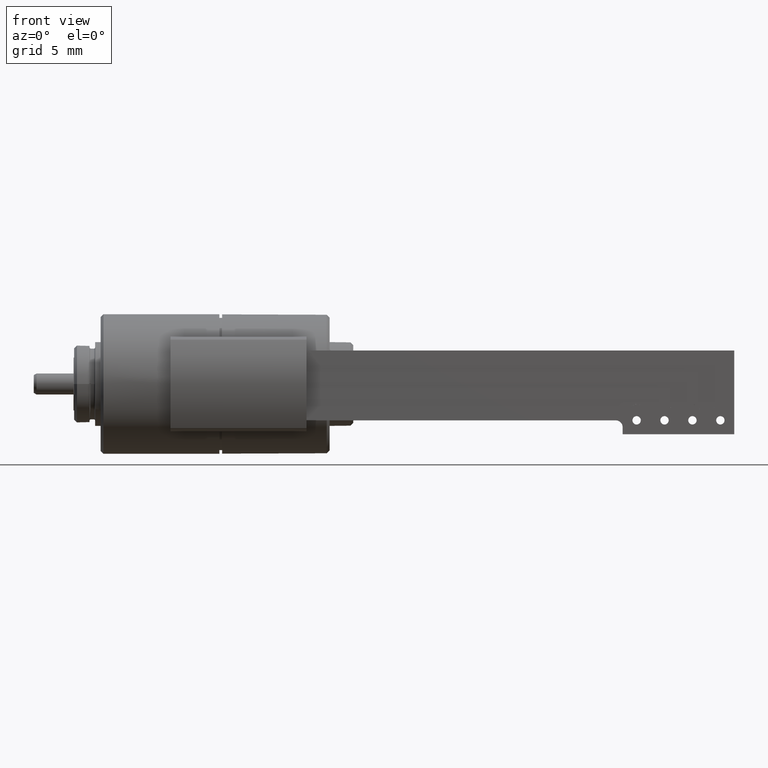
[diagram: clean part render]
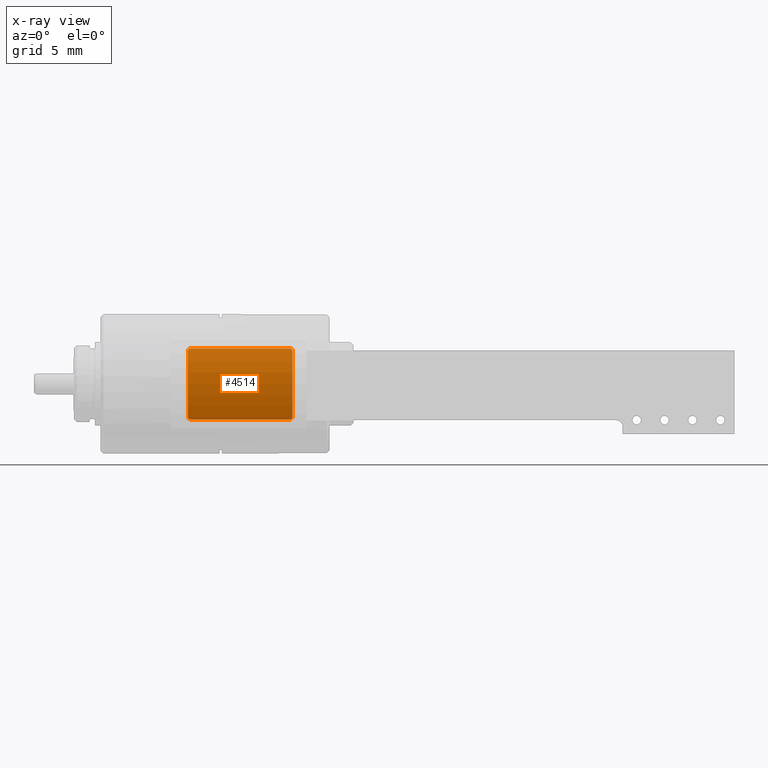
[diagram: x-ray — body ghosted, one internal face saturated and labeled with its STEP entity id]
A machine part, front view, then the same camera in x-ray: the body is ghosted and one INTERNAL B-rep face — a face not visible from any outside direction — is saturated and labeled: STEP entity #4514.
In plain terms, the highlighted cylindrical surface (partial cylindrical patch) has radius 5.75 mm, axis along (-1, 0, 0).
Its self-contained STEP definition (entity closure, byte-faithful):
#4018=DIRECTION('',(0.E0,0.E0,1.E0));
#4019=VECTOR('',#4018,7.1E0);
#4020=CARTESIAN_POINT('',(5.153639490690E0,2.55E0,1.45E0));
#4021=LINE('',#4020,#4019);
#4022=DIRECTION('',(0.E0,0.E0,-1.E0));
#4023=VECTOR('',#4022,7.1E0);
#4024=CARTESIAN_POINT('',(5.153639490690E0,-2.55E0,8.55E0));
#4025=LINE('',#4024,#4023);
#4036=CARTESIAN_POINT('',(0.E0,1.044100280164E-14,1.25E0));
#4037=DIRECTION('',(0.E0,0.E0,-1.E0));
#4038=DIRECTION('',(9.126707313671E-1,4.086956521739E-1,0.E0));
#4039=AXIS2_PLACEMENT_3D('',#4036,#4037,#4038);
#4041=CARTESIAN_POINT('',(0.E0,1.044100280164E-14,1.25E0));
#4042=DIRECTION('',(0.E0,0.E0,-1.E0));
#4043=DIRECTION('',(1.E0,0.E0,0.E0));
#4044=AXIS2_PLACEMENT_3D('',#4041,#4042,#4043);
#4077=CARTESIAN_POINT('',(5.153639490690E0,2.55E0,1.45E0));
#4078=CARTESIAN_POINT('',(5.153639490690E0,2.55E0,1.441117588205E0));
#4079=CARTESIAN_POINT('',(5.154227675848E0,2.548811765818E0,1.423284103695E0));
#4080=CARTESIAN_POINT('',(5.156875996432E0,2.543452465745E0,1.396889818334E0));
#4081=CARTESIAN_POINT('',(5.161303223129E0,2.534461713834E0,1.371102951083E0));
#4082=CARTESIAN_POINT('',(5.167462090660E0,2.521888243428E0,1.346493763300E0));
#4083=CARTESIAN_POINT('',(5.175331811785E0,2.505707788666E0,1.323416941754E0));
#4084=CARTESIAN_POINT('',(5.184769955185E0,2.486130718817E0,1.302528718098E0));
#4085=CARTESIAN_POINT('',(5.195695358819E0,2.463227787650E0,1.284263364089E0));
#4086=CARTESIAN_POINT('',(5.207767281447E0,2.437612207368E0,1.269388431245E0));
#4087=CARTESIAN_POINT('',(5.220767840914E0,2.409651443397E0,1.258308964087E0));
#4088=CARTESIAN_POINT('',(5.234269868447E0,2.380184635685E0,1.251523551414E0));
#4089=CARTESIAN_POINT('',(5.243340609774E0,2.360085030854E0,1.25E0));
#4090=CARTESIAN_POINT('',(5.247856705361E0,2.35E0,1.25E0));
#4123=CARTESIAN_POINT('',(5.153639490690E0,-2.55E0,8.55E0));
#4124=CARTESIAN_POINT('',(5.153639490690E0,-2.55E0,8.558882411795E0));
#4125=CARTESIAN_POINT('',(5.154227675848E0,-2.548811765818E0,8.576715896305E0));
#4126=CARTESIAN_POINT('',(5.156875996432E0,-2.543452465745E0,8.603110181666E0));
#4127=CARTESIAN_POINT('',(5.161303223129E0,-2.534461713834E0,8.628897048917E0));
#4128=CARTESIAN_POINT('',(5.167462090660E0,-2.521888243428E0,8.653506236700E0));
#4129=CARTESIAN_POINT('',(5.175331811785E0,-2.505707788666E0,8.676583058246E0));
#4130=CARTESIAN_POINT('',(5.184769955185E0,-2.486130718817E0,8.697471281902E0));
#4131=CARTESIAN_POINT('',(5.195695358819E0,-2.463227787650E0,8.715736635911E0));
#4132=CARTESIAN_POINT('',(5.207767281447E0,-2.437612207368E0,8.730611568755E0));
#4133=CARTESIAN_POINT('',(5.220767840914E0,-2.409651443397E0,8.741691035913E0));
#4134=CARTESIAN_POINT('',(5.234269868447E0,-2.380184635685E0,8.748476448586E0));
#4135=CARTESIAN_POINT('',(5.243340609774E0,-2.360085030854E0,8.75E0));
#4136=CARTESIAN_POINT('',(5.247856705361E0,-2.35E0,8.75E0));
#4152=CARTESIAN_POINT('',(0.E0,1.044100280164E-14,8.75E0));
#4153=DIRECTION('',(0.E0,0.E0,1.E0));
#4154=DIRECTION('',(9.126707313671E-1,-4.086956521739E-1,0.E0));
#4155=AXIS2_PLACEMENT_3D('',#4152,#4153,#4154);
#4157=CARTESIAN_POINT('',(0.E0,1.044100280164E-14,8.75E0));
#4158=DIRECTION('',(0.E0,0.E0,1.E0));
#4159=DIRECTION('',(1.E0,0.E0,0.E0));
#4160=AXIS2_PLACEMENT_3D('',#4157,#4158,#4159);
#4176=CARTESIAN_POINT('',(5.247856705361E0,2.35E0,8.75E0));
#4177=CARTESIAN_POINT('',(5.243339332826E0,2.360087882446E0,8.75E0));
#4178=CARTESIAN_POINT('',(5.234266679476E0,2.380191612916E0,8.748475006138E0));
#4179=CARTESIAN_POINT('',(5.220769696860E0,2.409647422790E0,8.741692331247E0));
#4180=CARTESIAN_POINT('',(5.207764261349E0,2.437618680434E0,8.730608648554E0));
#4181=CARTESIAN_POINT('',(5.195694722453E0,2.463229123652E0,8.715735774188E0));
#4182=CARTESIAN_POINT('',(5.184766618490E0,2.486137683435E0,8.697464824990E0));
#4183=CARTESIAN_POINT('',(5.175330351881E0,2.505710809009E0,8.676580042071E0));
#4184=CARTESIAN_POINT('',(5.167456720138E0,2.521899250994E0,8.653487816376E0));
#4185=CARTESIAN_POINT('',(5.161301559341E0,2.534465096276E0,8.628890073225E0));
#4186=CARTESIAN_POINT('',(5.156871488244E0,2.543461608555E0,8.603077811791E0));
#4187=CARTESIAN_POINT('',(5.154227629643E0,2.548811852519E0,8.576706648181E0));
#4188=CARTESIAN_POINT('',(5.153639490690E0,2.55E0,8.558878732556E0));
#4189=CARTESIAN_POINT('',(5.153639490690E0,2.55E0,8.55E0));
#4209=CARTESIAN_POINT('',(5.247856705361E0,-2.35E0,1.25E0));
#4210=CARTESIAN_POINT('',(5.243339332826E0,-2.360087882446E0,1.25E0));
#4211=CARTESIAN_POINT('',(5.234266679476E0,-2.380191612916E0,1.251524993862E0));
#4212=CARTESIAN_POINT('',(5.220769696860E0,-2.409647422790E0,1.258307668753E0));
#4213=CARTESIAN_POINT('',(5.207764261349E0,-2.437618680434E0,1.269391351446E0));
#4214=CARTESIAN_POINT('',(5.195694722453E0,-2.463229123652E0,1.284264225812E0));
#4215=CARTESIAN_POINT('',(5.184766618490E0,-2.486137683435E0,1.302535175010E0));
#4216=CARTESIAN_POINT('',(5.175330351881E0,-2.505710809009E0,1.323419957929E0));
#4217=CARTESIAN_POINT('',(5.167456720138E0,-2.521899250994E0,1.346512183624E0));
#4218=CARTESIAN_POINT('',(5.161301559341E0,-2.534465096276E0,1.371109926775E0));
#4219=CARTESIAN_POINT('',(5.156871488244E0,-2.543461608555E0,1.396922188209E0));
#4220=CARTESIAN_POINT('',(5.154227629643E0,-2.548811852519E0,1.423293351819E0));
#4221=CARTESIAN_POINT('',(5.153639490690E0,-2.55E0,1.441121267444E0));
#4222=CARTESIAN_POINT('',(5.153639490690E0,-2.55E0,1.45E0));
#4284=CARTESIAN_POINT('',(5.153639490690E0,-2.55E0,8.55E0));
#4285=CARTESIAN_POINT('',(5.153639490690E0,-2.55E0,1.45E0));
#4286=VERTEX_POINT('',#4284);
#4287=VERTEX_POINT('',#4285);
#4292=CARTESIAN_POINT('',(5.75E0,1.066304740657E-14,1.25E0));
#4293=CARTESIAN_POINT('',(5.247856705361E0,-2.35E0,1.25E0));
#4294=VERTEX_POINT('',#4292);
#4295=VERTEX_POINT('',#4293);
#4296=CARTESIAN_POINT('',(5.247856705361E0,2.35E0,1.25E0));
#4297=VERTEX_POINT('',#4296);
#4298=VERTEX_POINT('',#4077);
#4299=CARTESIAN_POINT('',(5.153639490690E0,2.55E0,8.55E0));
#4300=VERTEX_POINT('',#4299);
#4301=VERTEX_POINT('',#4176);
#4302=CARTESIAN_POINT('',(5.75E0,1.021895819671E-14,8.75E0));
#4303=VERTEX_POINT('',#4302);
#4304=CARTESIAN_POINT('',(5.247856705361E0,-2.35E0,8.75E0));
#4305=VERTEX_POINT('',#4304);
#4488=CARTESIAN_POINT('',(0.E0,1.044100280164E-14,8.75E0));
#4489=DIRECTION('',(0.E0,0.E0,-1.E0));
#4490=DIRECTION('',(-1.E0,0.E0,0.E0));
#4491=AXIS2_PLACEMENT_3D('',#4488,#4489,#4490);
#4492=CYLINDRICAL_SURFACE('',#4491,5.75E0);
#4494=ORIENTED_EDGE('',*,*,#4493,.F.);
#4496=ORIENTED_EDGE('',*,*,#4495,.F.);
#4498=ORIENTED_EDGE('',*,*,#4497,.F.);
#4500=ORIENTED_EDGE('',*,*,#4499,.T.);
#4502=ORIENTED_EDGE('',*,*,#4501,.F.);
#4504=ORIENTED_EDGE('',*,*,#4503,.F.);
#4506=ORIENTED_EDGE('',*,*,#4505,.F.);
#4508=ORIENTED_EDGE('',*,*,#4507,.F.);
#4509=ORIENTED_EDGE('',*,*,#4472,.T.);
#4511=ORIENTED_EDGE('',*,*,#4510,.F.);
#4512=EDGE_LOOP('',(#4494,#4496,#4498,#4500,#4502,#4504,#4506,#4508,#4509,
#4511));
#4513=FACE_OUTER_BOUND('',#4512,.F.);
#4514=ADVANCED_FACE('',(#4513),#4492,.F.);
#4040=CIRCLE('',#4039,5.75E0);
#4045=CIRCLE('',#4044,5.75E0);
#4091=B_SPLINE_CURVE_WITH_KNOTS('',3,(#4077,#4078,#4079,#4080,#4081,#4082,#4083,
#4084,#4085,#4086,#4087,#4088,#4089,#4090),.UNSPECIFIED.,.F.,.F.,(4,1,1,1,1,1,1,
1,1,1,1,4),(0.E0,9.090909090909E-2,1.818181818182E-1,2.727272727273E-1,
3.636363636364E-1,4.545454545455E-1,5.454545454545E-1,6.363636363636E-1,
7.272727272727E-1,8.181818181818E-1,9.090909090909E-1,1.E0),.UNSPECIFIED.);
#4137=B_SPLINE_CURVE_WITH_KNOTS('',3,(#4123,#4124,#4125,#4126,#4127,#4128,#4129,
#4130,#4131,#4132,#4133,#4134,#4135,#4136),.UNSPECIFIED.,.F.,.F.,(4,1,1,1,1,1,1,
1,1,1,1,4),(0.E0,9.090909090909E-2,1.818181818182E-1,2.727272727273E-1,
3.636363636364E-1,4.545454545455E-1,5.454545454545E-1,6.363636363636E-1,
7.272727272727E-1,8.181818181818E-1,9.090909090909E-1,1.E0),.UNSPECIFIED.);
#4156=CIRCLE('',#4155,5.75E0);
#4161=CIRCLE('',#4160,5.75E0);
#4190=B_SPLINE_CURVE_WITH_KNOTS('',3,(#4176,#4177,#4178,#4179,#4180,#4181,#4182,
#4183,#4184,#4185,#4186,#4187,#4188,#4189),.UNSPECIFIED.,.F.,.F.,(4,1,1,1,1,1,1,
1,1,1,1,4),(0.E0,9.090909090909E-2,1.818181818182E-1,2.727272727273E-1,
3.636363636364E-1,4.545454545455E-1,5.454545454545E-1,6.363636363636E-1,
7.272727272727E-1,8.181818181818E-1,9.090909090909E-1,1.E0),.UNSPECIFIED.);
#4223=B_SPLINE_CURVE_WITH_KNOTS('',3,(#4209,#4210,#4211,#4212,#4213,#4214,#4215,
#4216,#4217,#4218,#4219,#4220,#4221,#4222),.UNSPECIFIED.,.F.,.F.,(4,1,1,1,1,1,1,
1,1,1,1,4),(0.E0,9.090909090909E-2,1.818181818182E-1,2.727272727273E-1,
3.636363636364E-1,4.545454545455E-1,5.454545454545E-1,6.363636363636E-1,
7.272727272727E-1,8.181818181818E-1,9.090909090909E-1,1.E0),.UNSPECIFIED.);
#4472=EDGE_CURVE('',#4286,#4287,#4025,.T.);
#4493=EDGE_CURVE('',#4294,#4295,#4045,.T.);
#4495=EDGE_CURVE('',#4297,#4294,#4040,.T.);
#4497=EDGE_CURVE('',#4298,#4297,#4091,.T.);
#4499=EDGE_CURVE('',#4298,#4300,#4021,.T.);
#4501=EDGE_CURVE('',#4301,#4300,#4190,.T.);
#4503=EDGE_CURVE('',#4303,#4301,#4161,.T.);
#4505=EDGE_CURVE('',#4305,#4303,#4156,.T.);
#4507=EDGE_CURVE('',#4286,#4305,#4137,.T.);
#4510=EDGE_CURVE('',#4295,#4287,#4223,.T.);